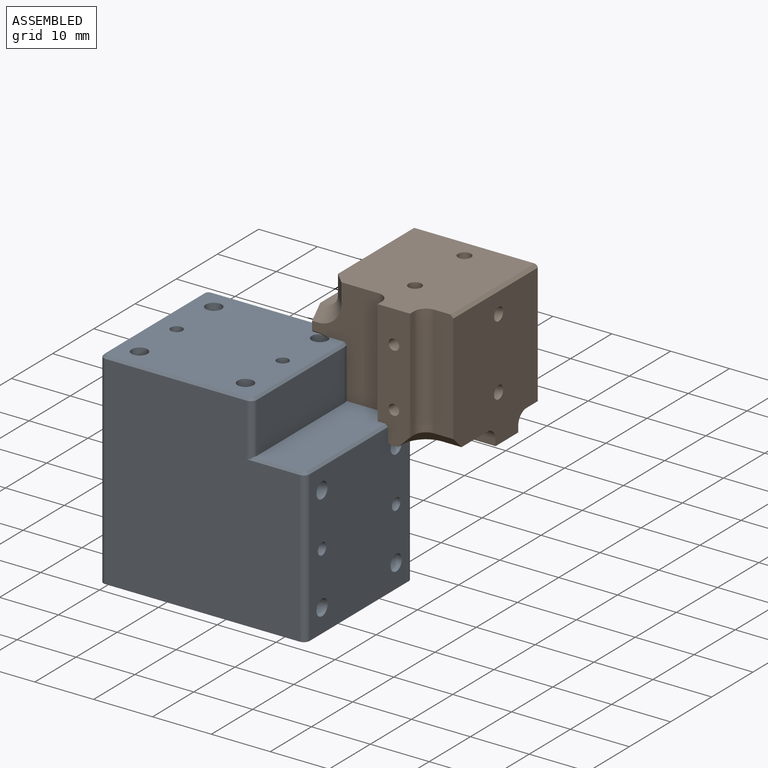
[diagram: assembled view]
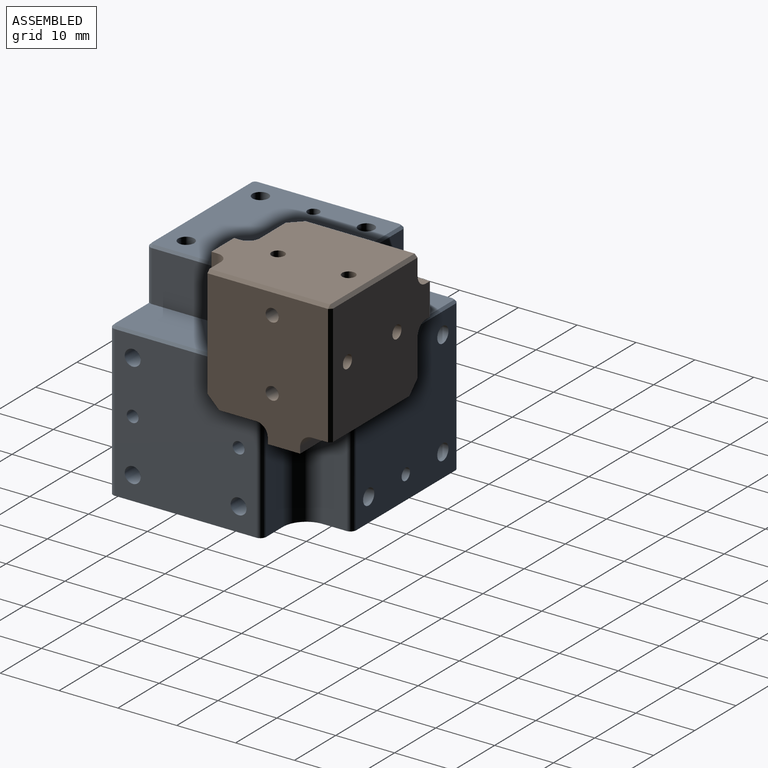
[diagram: assembled view, second angle]
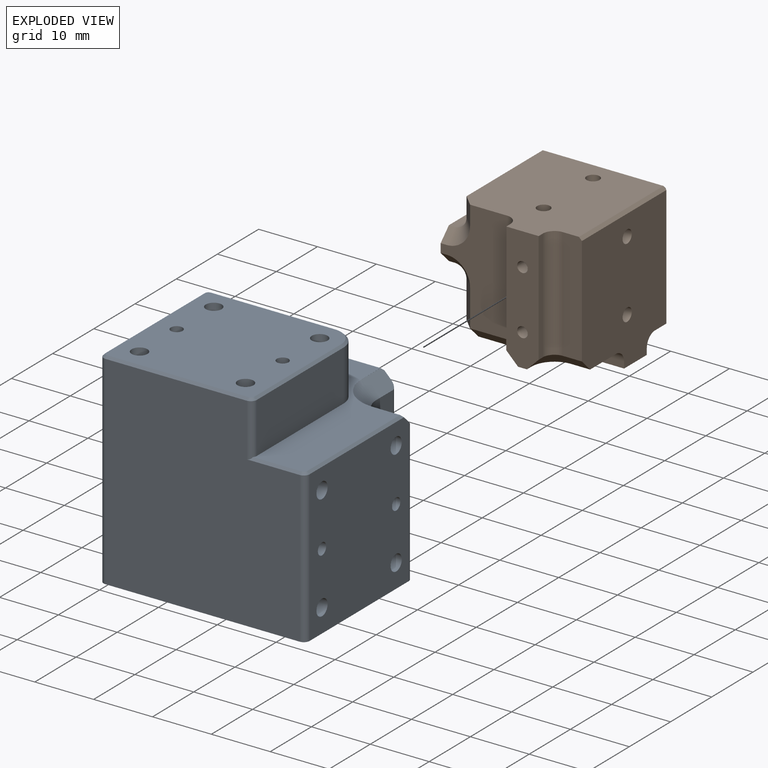
[diagram: exploded view]
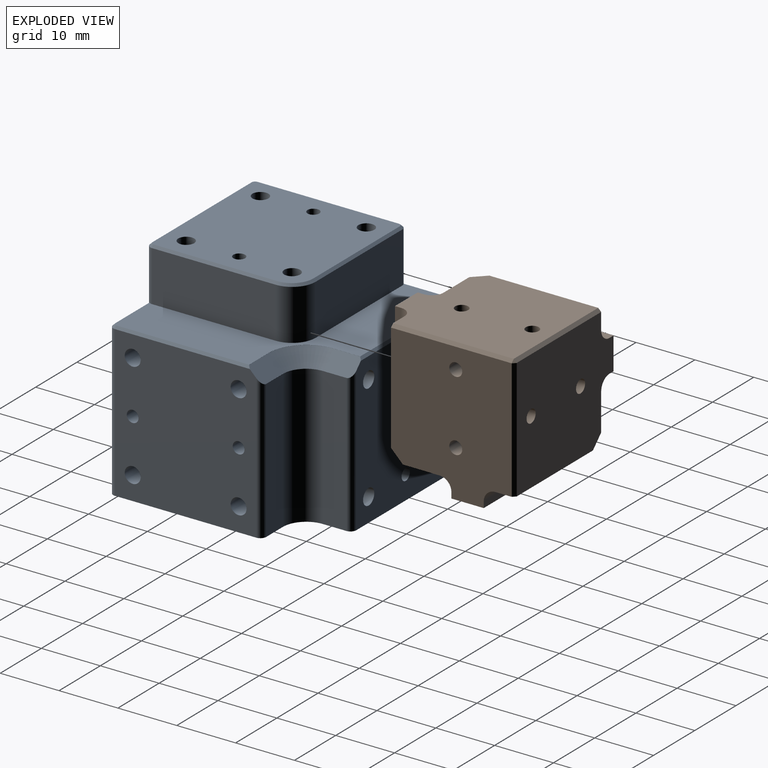
[diagram: exploded view, second angle]
FCSTD DOCUMENT  (FreeCAD 1.1R41365 (Git))
Label: Assembly_MicroManipulator
License: All rights reserved
LicenseURL: https://en.wikipedia.org/wiki/All_rights_reserved
objects: App::Link×35, Assembly::AssemblyLink×6, App::Point×4, App::FeaturePython×1, Assembly::JointGroup×1, Assembly::AssemblyObject×1
EXTERNAL_REF file=BaseBlock.FCStd obj=Body
EXTERNAL_REF file=Assembly_Actuator.FCStd obj=Assembly
EXTERNAL_REF file=Assembly_Actuator.FCStd obj=MotorHorn
EXTERNAL_REF file=Assembly_Actuator.FCStd obj=StepperMotorNema17
EXTERNAL_REF file=Assembly_Actuator.FCStd obj=Assembly_WireFlexureUnit
EXTERNAL_REF file=Assembly_WireFlexureUnit.FCStd obj=FlexureWire
EXTERNAL_REF file=Assembly_WireFlexureUnit.FCStd obj=FlexureWire001
EXTERNAL_REF file=Assembly_WireFlexureUnit.FCStd obj=WireMount
EXTERNAL_REF file=Assembly_WireFlexureUnit.FCStd obj=WireMount001
EXTERNAL_REF file=Assembly_WireFlexureUnit.FCStd obj=FlexureStiffener
EXTERNAL_REF file=Assembly_WireFlexureUnit.FCStd obj=FlexureStiffener001
EXTERNAL_REF file=Assembly_Actuator.FCStd obj=EncoderMAgnetArray
EXTERNAL_REF file=Assembly_Actuator.FCStd obj=MotorMount
EXTERNAL_REF file=Assembly_Actuator.FCStd obj=MT6835
EXTERNAL_REF file=EndEffector.FCStd obj=Body

FEATURE [App::Point] Origin001
  Role = Origin
FEATURE [App::Link] BaseBlock
  LinkedObject = -> <external BaseBlock.FCStd>#Body
FEATURE [App::FeaturePython] GroundedJoint  # Assembly grounded joint (typed FeaturePython)
  ObjectToGround = -> BaseBlock
FEATURE [Assembly::JointGroup] Joints
  Group = -> [GroundedJoint]
FEATURE [App::Point] Origin003
  Role = Origin
FEATURE [App::Link] MotorHorn
  LinkPlacement = pos=(7.39098e-06,7.86781e-06,55) rot=(0,0,1;0rad)
  LinkedObject = -> <external Assembly_Actuator.FCStd>#MotorHorn
  Placement = pos=(7.39098e-06,7.86781e-06,55) rot=(0,0,1;0rad)
FEATURE [App::Link] StepperMotorNema17
  LinkPlacement = pos=(0,2.53526e-07,-7.1e-15) rot=(0,0,1;3.14159rad)
  LinkedObject = -> <external Assembly_Actuator.FCStd>#StepperMotorNema17
  Placement = pos=(0,2.53526e-07,-7.1e-15) rot=(0,0,1;3.14159rad)
FEATURE [App::Point] Origin005
  Role = Origin
FEATURE [App::Link] MotorHorn001
  LinkPlacement = pos=(7.39098e-06,7.86781e-06,55) rot=(0,0,1;0rad)
  LinkedObject = -> <external Assembly_Actuator.FCStd>#MotorHorn
  Placement = pos=(7.39098e-06,7.86781e-06,55) rot=(0,0,1;0rad)
FEATURE [App::Link] StepperMotorNema001
  LinkPlacement = pos=(0,2.53526e-07,-7.1e-15) rot=(0,0,1;3.14159rad)
  LinkedObject = -> <external Assembly_Actuator.FCStd>#StepperMotorNema17
  Placement = pos=(0,2.53526e-07,-7.1e-15) rot=(0,0,1;3.14159rad)
FEATURE [App::Point] Origin007
  Role = Origin
FEATURE [App::Link] MotorHorn002
  LinkPlacement = pos=(7.39098e-06,7.86781e-06,55) rot=(0,0,1;0rad)
  LinkedObject = -> <external Assembly_Actuator.FCStd>#MotorHorn
  Placement = pos=(7.39098e-06,7.86781e-06,55) rot=(0,0,1;0rad)
FEATURE [App::Link] StepperMotorNema002
  LinkPlacement = pos=(0,2.53526e-07,-7.1e-15) rot=(0,0,1;3.14159rad)
  LinkedObject = -> <external Assembly_Actuator.FCStd>#StepperMotorNema17
  Placement = pos=(0,2.53526e-07,-7.1e-15) rot=(0,0,1;3.14159rad)
FEATURE [App::Link] FlexureWire  label="FlexureWire1"
  LinkPlacement = pos=(-8.5,9.53674e-07,0) rot=(0,0,1;0rad)
  LinkedObject = -> <external Assembly_WireFlexureUnit.FCStd>#FlexureWire
  Placement = pos=(-8.5,9.53674e-07,0) rot=(0,0,1;0rad)
FEATURE [App::Link] FlexureWire001  label="FlexureWire2"
  LinkPlacement = pos=(8.5,-9.53675e-07,0) rot=(0,0,1;0rad)
  LinkedObject = -> <external Assembly_WireFlexureUnit.FCStd>#FlexureWire001
  Placement = pos=(8.5,-9.53675e-07,0) rot=(0,0,1;0rad)
FEATURE [App::Link] WireMount  label="WireMount1"
  LinkPlacement = pos=(1.421e-13,40,0) rot=(0,0,1;0rad)
  LinkedObject = -> <external Assembly_WireFlexureUnit.FCStd>#WireMount
  Placement = pos=(1.421e-13,40,0) rot=(0,0,1;0rad)
FEATURE [App::Link] WireMount001  label="WireMount2"
  LinkPlacement = pos=(3.73908e-06,-40,0) rot=(1.00615,0,0;3.14159rad)
  LinkedObject = -> <external Assembly_WireFlexureUnit.FCStd>#WireMount001
  Placement = pos=(3.73908e-06,-40,0) rot=(1.00615,0,0;3.14159rad)
FEATURE [App::Link] FlexureWire002
  LinkPlacement = pos=(-8.5,9.53674e-07,0) rot=(0,0,1;0rad)
  LinkedObject = -> <external Assembly_WireFlexureUnit.FCStd>#FlexureWire
  Placement = pos=(-8.5,9.53674e-07,0) rot=(0,0,1;0rad)
FEATURE [App::Link] FlexureWire003
  LinkPlacement = pos=(8.5,-9.53675e-07,0) rot=(0,0,1;0rad)
  LinkedObject = -> <external Assembly_WireFlexureUnit.FCStd>#FlexureWire001
  Placement = pos=(8.5,-9.53675e-07,0) rot=(0,0,1;0rad)
FEATURE [App::Link] WireMount002
  LinkPlacement = pos=(1.421e-13,40,0) rot=(0,0,1;0rad)
  LinkedObject = -> <external Assembly_WireFlexureUnit.FCStd>#WireMount
  Placement = pos=(1.421e-13,40,0) rot=(0,0,1;0rad)
FEATURE [App::Link] WireMount003
  LinkPlacement = pos=(3.73908e-06,-40,0) rot=(1.00615,0,0;3.14159rad)
  LinkedObject = -> <external Assembly_WireFlexureUnit.FCStd>#WireMount001
  Placement = pos=(3.73908e-06,-40,0) rot=(1.00615,0,0;3.14159rad)
FEATURE [App::Link] FlexureWire004
  LinkPlacement = pos=(-8.5,9.53674e-07,0) rot=(0,0,1;0rad)
  LinkedObject = -> <external Assembly_WireFlexureUnit.FCStd>#FlexureWire
  Placement = pos=(-8.5,9.53674e-07,0) rot=(0,0,1;0rad)
FEATURE [App::Link] FlexureWire005
  LinkPlacement = pos=(8.5,-9.53675e-07,0) rot=(0,0,1;0rad)
  LinkedObject = -> <external Assembly_WireFlexureUnit.FCStd>#FlexureWire001
  Placement = pos=(8.5,-9.53675e-07,0) rot=(0,0,1;0rad)
FEATURE [App::Link] WireMount004
  LinkPlacement = pos=(1.421e-13,40,0) rot=(0,0,1;0rad)
  LinkedObject = -> <external Assembly_WireFlexureUnit.FCStd>#WireMount
  Placement = pos=(1.421e-13,40,0) rot=(0,0,1;0rad)
FEATURE [App::Link] WireMount005
  LinkPlacement = pos=(3.73908e-06,-40,0) rot=(1.00615,0,0;3.14159rad)
  LinkedObject = -> <external Assembly_WireFlexureUnit.FCStd>#WireMount001
  Placement = pos=(3.73908e-06,-40,0) rot=(1.00615,0,0;3.14159rad)
FEATURE [App::Link] FlexureStiffener  label="FlexureStiffener1"
  LinkPlacement = pos=(8.5,0,0) rot=(0,0,1;0rad)
  LinkedObject = -> <external Assembly_WireFlexureUnit.FCStd>#FlexureStiffener
  Placement = pos=(8.5,0,0) rot=(0,0,1;0rad)
FEATURE [App::Link] FlexureStiffener001  label="FlexureStiffener2"
  LinkPlacement = pos=(-8.5,9.53675e-07,0) rot=(0,0,1;0rad)
  LinkedObject = -> <external Assembly_WireFlexureUnit.FCStd>#FlexureStiffener001
  Placement = pos=(-8.5,9.53675e-07,0) rot=(0,0,1;0rad)
FEATURE [Assembly::AssemblyLink] Assembly_WireFlexureUnit  label="WireFlexureUnit"
  Group = -> [FlexureWire,FlexureWire001,WireMount,WireMount001,FlexureStiffener,FlexureStiffener001]
  LinkedObject = -> <external Assembly_Actuator.FCStd>#Assembly_WireFlexureUnit
  Placement = pos=(15,-36.5,65) rot=(0,1,0;1.5708rad)
  Rigid = true
FEATURE [App::Link] FlexureStiffener002
  LinkPlacement = pos=(8.5,0,0) rot=(0,0,1;0rad)
  LinkedObject = -> <external Assembly_WireFlexureUnit.FCStd>#FlexureStiffener
  Placement = pos=(8.5,0,0) rot=(0,0,1;0rad)
FEATURE [App::Link] FlexureStiffener003
  LinkPlacement = pos=(-8.5,9.53675e-07,0) rot=(0,0,1;0rad)
  LinkedObject = -> <external Assembly_WireFlexureUnit.FCStd>#FlexureStiffener001
  Placement = pos=(-8.5,9.53675e-07,0) rot=(0,0,1;0rad)
FEATURE [Assembly::AssemblyLink] Assembly_WireFlexureUnit001  label="WireFlexureUnit001"
  Group = -> [FlexureWire002,FlexureWire003,WireMount002,WireMount003,FlexureStiffener002,FlexureStiffener003]
  LinkedObject = -> <external Assembly_Actuator.FCStd>#Assembly_WireFlexureUnit
  Placement = pos=(15,-36.5,65) rot=(0,1,0;1.5708rad)
  Rigid = true
FEATURE [App::Link] FlexureStiffener004
  LinkPlacement = pos=(8.5,0,0) rot=(0,0,1;0rad)
  LinkedObject = -> <external Assembly_WireFlexureUnit.FCStd>#FlexureStiffener
  Placement = pos=(8.5,0,0) rot=(0,0,1;0rad)
FEATURE [App::Link] FlexureStiffener005
  LinkPlacement = pos=(-8.5,9.53675e-07,0) rot=(0,0,1;0rad)
  LinkedObject = -> <external Assembly_WireFlexureUnit.FCStd>#FlexureStiffener001
  Placement = pos=(-8.5,9.53675e-07,0) rot=(0,0,1;0rad)
FEATURE [Assembly::AssemblyLink] Assembly_WireFlexureUnit002  label="WireFlexureUnit002"
  Group = -> [FlexureWire004,FlexureWire005,WireMount004,WireMount005,FlexureStiffener004,FlexureStiffener005]
  LinkedObject = -> <external Assembly_Actuator.FCStd>#Assembly_WireFlexureUnit
  Placement = pos=(15,-36.5,65) rot=(0,1,0;1.5708rad)
  Rigid = true
FEATURE [App::Link] EncoderMAgnetArray
  LinkPlacement = pos=(0,-6.70552e-06,56) rot=(0,0,1;0rad)
  LinkedObject = -> <external Assembly_Actuator.FCStd>#EncoderMAgnetArray
  Placement = pos=(0,-6.70552e-06,56) rot=(0,0,1;0rad)
FEATURE [App::Link] EncoderMAgnetArray001
  LinkPlacement = pos=(0,-6.70552e-06,56) rot=(0,0,1;0rad)
  LinkedObject = -> <external Assembly_Actuator.FCStd>#EncoderMAgnetArray
  Placement = pos=(0,-6.70552e-06,56) rot=(0,0,1;0rad)
FEATURE [App::Link] EncoderMAgnetArray002
  LinkPlacement = pos=(0,-6.70552e-06,56) rot=(0,0,1;0rad)
  LinkedObject = -> <external Assembly_Actuator.FCStd>#EncoderMAgnetArray
  Placement = pos=(0,-6.70552e-06,56) rot=(0,0,1;0rad)
FEATURE [App::Link] MotorMount
  LinkPlacement = pos=(-1.1506e-12,-5.60284e-06,47.5) rot=(0,0,1;0rad)
  LinkedObject = -> <external Assembly_Actuator.FCStd>#MotorMount
  Placement = pos=(-1.1506e-12,-5.60284e-06,47.5) rot=(0,0,1;0rad)
FEATURE [App::Link] MotorMount001
  LinkPlacement = pos=(-1.1506e-12,-5.60284e-06,47.5) rot=(0,0,1;0rad)
  LinkedObject = -> <external Assembly_Actuator.FCStd>#MotorMount
  Placement = pos=(-1.1506e-12,-5.60284e-06,47.5) rot=(0,0,1;0rad)
FEATURE [App::Link] MotorMount002
  LinkPlacement = pos=(-1.1506e-12,-5.60284e-06,47.5) rot=(0,0,1;0rad)
  LinkedObject = -> <external Assembly_Actuator.FCStd>#MotorMount
  Placement = pos=(-1.1506e-12,-5.60284e-06,47.5) rot=(0,0,1;0rad)
FEATURE [App::Link] MT6835
  LinkPlacement = pos=(-32,5.40315e-06,53) rot=(0.57735,-0.57735,0.57735;4.18879rad)
  LinkedObject = -> <external Assembly_Actuator.FCStd>#MT6835
  Placement = pos=(-32,5.40315e-06,53) rot=(0.57735,-0.57735,0.57735;4.18879rad)
FEATURE [Assembly::AssemblyLink] Assembly_Actuator  label="Assembly_Actuator1"
  Group = -> [MotorHorn,StepperMotorNema17,Assembly_WireFlexureUnit,EncoderMAgnetArray,MotorMount,MT6835]
  LinkedObject = -> <external Assembly_Actuator.FCStd>#Assembly
  Origin = -> Origin002
  Placement = pos=(-41.5,2.5,-31) rot=(0,0,1;1.5708rad)
  Rigid = true
FEATURE [App::Link] MT6836
  LinkPlacement = pos=(-32,5.40315e-06,53) rot=(0.57735,-0.57735,0.57735;4.18879rad)
  LinkedObject = -> <external Assembly_Actuator.FCStd>#MT6835
  Placement = pos=(-32,5.40315e-06,53) rot=(0.57735,-0.57735,0.57735;4.18879rad)
FEATURE [Assembly::AssemblyLink] Assembly_Actuator001  label="Assembly_Actuator2"
  Group = -> [MotorHorn001,StepperMotorNema001,Assembly_WireFlexureUnit001,EncoderMAgnetArray001,MotorMount001,MT6836]
  LinkedObject = -> <external Assembly_Actuator.FCStd>#Assembly
  Origin = -> Origin004
  Placement = pos=(-31,-41.5,2.49999) rot=(0.707107,0,0.707107;3.14159rad)
  Rigid = true
FEATURE [App::Link] MT6837
  LinkPlacement = pos=(-32,5.40315e-06,53) rot=(0.57735,-0.57735,0.57735;4.18879rad)
  LinkedObject = -> <external Assembly_Actuator.FCStd>#MT6835
  Placement = pos=(-32,5.40315e-06,53) rot=(0.57735,-0.57735,0.57735;4.18879rad)
FEATURE [Assembly::AssemblyLink] Assembly_Actuator002  label="Assembly_Actuator3"
  Group = -> [MotorHorn002,StepperMotorNema002,Assembly_WireFlexureUnit002,EncoderMAgnetArray002,MotorMount002,MT6837]
  LinkedObject = -> <external Assembly_Actuator.FCStd>#Assembly
  Origin = -> Origin006
  Placement = pos=(2.5,-31,-41.5) rot=(-1,0,0;1.5708rad)
  Rigid = true
FEATURE [App::Link] Endeffector
  LinkPlacement = pos=(32,32,32) rot=(0,0,1;0rad)
  LinkedObject = -> <external EndEffector.FCStd>#Body
  Placement = pos=(32,32,32) rot=(0,0,1;0rad)
FEATURE [Assembly::AssemblyObject] Assembly  label="Assembly_MicroManipulator"
  Group = -> [Joints,BaseBlock,GroundedJoint,Assembly_Actuator,Assembly_Actuator001,Assembly_Actuator002,Endeffector]
  Origin = -> Origin
  Type = Assembly

RESOLVED EXTERNAL PARTS (link-assembly join: the EXTERNAL_REF files above that resolve inside this repo's crawl, each included once):
---- part Assembly_Actuator.FCStd = doc fcstd_84c00663fac4 ----
FCSTD DOCUMENT  (FreeCAD 1.1R41365 (Git))
Label: Assembly_Actuator
License: All rights reserved
LicenseURL: https://en.wikipedia.org/wiki/All_rights_reserved
objects: App::Link×22, App::Point×2, App::FeaturePython×1, Assembly::JointGroup×1, Assembly::AssemblyObject×1, Assembly::AssemblyLink×1
EXTERNAL_REF file=MotorHorn.FCStd obj=Body
EXTERNAL_REF file=StepperMotorNema17.FCStd obj=Part
EXTERNAL_REF file=Assembly_WireFlexureUnit.FCStd obj=Assembly
EXTERNAL_REF file=Assembly_WireFlexureUnit.FCStd obj=FlexureWire
EXTERNAL_REF file=Assembly_WireFlexureUnit.FCStd obj=FlexureWire001
EXTERNAL_REF file=Assembly_WireFlexureUnit.FCStd obj=WireMount
EXTERNAL_REF file=Assembly_WireFlexureUnit.FCStd obj=WireMount001
EXTERNAL_REF file=EncoderMagnetArray.FCStd obj=Body
EXTERNAL_REF file=MT6835.FCStd obj=Body
EXTERNAL_REF file=MotorMount2_KM.FCStd obj=Body
EXTERNAL_REF file=Assembly_WireFlexureUnit.FCStd obj=Ball
EXTERNAL_REF file=Assembly_WireFlexureUnit.FCStd obj=Ball001
EXTERNAL_REF file=Assembly_WireFlexureUnit.FCStd obj=Ball002
EXTERNAL_REF file=Assembly_WireFlexureUnit.FCStd obj=Ball003
EXTERNAL_REF file=Assembly_WireFlexureUnit.FCStd obj=RubberBandCollet
EXTERNAL_REF file=Assembly_WireFlexureUnit.FCStd obj=RubberBandCollet001
EXTERNAL_REF file=Assembly_WireFlexureUnit.FCStd obj=RubberBandCollet002
EXTERNAL_REF file=Assembly_WireFlexureUnit.FCStd obj=RubberBandCollet003
EXTERNAL_REF file=Assembly_WireFlexureUnit.FCStd obj=RubberBand
EXTERNAL_REF file=Assembly_WireFlexureUnit.FCStd obj=RubberBand001
EXTERNAL_REF file=Assembly_WireFlexureUnit.FCStd obj=RubberBand002
EXTERNAL_REF file=Assembly_WireFlexureUnit.FCStd obj=RubberBand003

FEATURE [App::Point] Origin001
  Role = Origin
FEATURE [App::Link] MotorHorn
  LinkPlacement = pos=(7.39098e-06,7.86781e-06,55) rot=(0,0,1;0rad)
  LinkedObject = -> <external MotorHorn.FCStd>#Body
  Placement = pos=(7.39098e-06,7.86781e-06,55) rot=(0,0,1;0rad)
FEATURE [App::Link] StepperMotorNema17
  LinkPlacement = pos=(0,2.53526e-07,-7.1e-15) rot=(0,0,1;3.14159rad)
  LinkedObject = -> <external StepperMotorNema17.FCStd>#Part
  Placement = pos=(0,2.53526e-07,-7.1e-15) rot=(0,0,1;3.14159rad)
FEATURE [App::FeaturePython] GroundedJoint  # Assembly grounded joint (typed FeaturePython)
  ObjectToGround = -> StepperMotorNema17
FEATURE [Assembly::JointGroup] Joints
  Group = -> [GroundedJoint]
FEATURE [App::Point] Origin003
  Role = Origin
FEATURE [App::Link] FlexureWire  label="FlexureWire1"
  LinkPlacement = pos=(-8.5,9.53674e-07,0) rot=(0,0,1;0rad)
  LinkedObject = -> <external Assembly_WireFlexureUnit.FCStd>#FlexureWire
  Placement = pos=(-8.5,9.53674e-07,0) rot=(0,0,1;0rad)
FEATURE [App::Link] FlexureWire001  label="FlexureWire2"
  LinkPlacement = pos=(8.5,-9.53675e-07,0) rot=(0,0,1;0rad)
  LinkedObject = -> <external Assembly_WireFlexureUnit.FCStd>#FlexureWire001
  Placement = pos=(8.5,-9.53675e-07,0) rot=(0,0,1;0rad)
FEATURE [App::Link] WireMount  label="WireMount1"
  LinkPlacement = pos=(1.421e-13,40,0) rot=(0,0,1;0rad)
  LinkedObject = -> <external Assembly_WireFlexureUnit.FCStd>#WireMount
  Placement = pos=(1.421e-13,40,0) rot=(0,0,1;0rad)
FEATURE [App::Link] WireMount001  label="WireMount2"
  LinkPlacement = pos=(3.73908e-06,-40,0) rot=(1,0,0;3.14159rad)
  LinkedObject = -> <external Assembly_WireFlexureUnit.FCStd>#WireMount001
  Placement = pos=(3.73908e-06,-40,0) rot=(1,0,0;3.14159rad)
FEATURE [App::Link] EncoderMAgnetArray  label="EncoderMagnetArray"
  LinkPlacement = pos=(0,-6.70552e-06,56) rot=(0,0,1;0rad)
  LinkedObject = -> <external EncoderMagnetArray.FCStd>#Body
  Placement = pos=(0,-6.70552e-06,56) rot=(0,0,1;0rad)
FEATURE [App::Link] MT6835
  LinkPlacement = pos=(-32,6.52075e-06,53.5) rot=(0,1,0;1.5708rad)
  LinkedObject = -> <external MT6835.FCStd>#Body
  Placement = pos=(-32,6.52075e-06,53.5) rot=(0,1,0;1.5708rad)
FEATURE [App::Link] MotorMount_KM
  LinkPlacement = pos=(2.98461e-06,-1.07433e-05,54.5) rot=(0.707107,0.707107,0;3.14159rad)
  LinkedObject = -> <external MotorMount2_KM.FCStd>#Body
  Placement = pos=(2.98461e-06,-1.07433e-05,54.5) rot=(0.707107,0.707107,0;3.14159rad)
FEATURE [App::Link] Ball  label="Ball1"
  LinkPlacement = pos=(-8.5,36.5,0) rot=(0,0,1;0rad)
  LinkedObject = -> <external Assembly_WireFlexureUnit.FCStd>#Ball
  Placement = pos=(-8.5,36.5,0) rot=(0,0,1;0rad)
FEATURE [App::Link] Ball001  label="Ball2"
  LinkPlacement = pos=(8.5,36.5,0) rot=(0,0,1;0rad)
  LinkedObject = -> <external Assembly_WireFlexureUnit.FCStd>#Ball001
  Placement = pos=(8.5,36.5,0) rot=(0,0,1;0rad)
FEATURE [App::Link] Ball002  label="Ball3"
  LinkPlacement = pos=(-8.5,-36.5,0) rot=(0,0,1;0rad)
  LinkedObject = -> <external Assembly_WireFlexureUnit.FCStd>#Ball002
  Placement = pos=(-8.5,-36.5,0) rot=(0,0,1;0rad)
FEATURE [App::Link] Ball003  label="Ball4"
  LinkPlacement = pos=(8.5,-36.5,0) rot=(0,0,1;0rad)
  LinkedObject = -> <external Assembly_WireFlexureUnit.FCStd>#Ball003
  Placement = pos=(8.5,-36.5,0) rot=(0,0,1;0rad)
FEATURE [App::Link] Link  label="WireFlexureUnit001"
  LinkPlacement = pos=(15,-36.5,65) rot=(0,1,0;1.5708rad)
  LinkedObject = -> Assembly_WireFlexureUnit
  Placement = pos=(15,-36.5,65) rot=(0,1,0;1.5708rad)
FEATURE [Assembly::AssemblyObject] Assembly  label="Actuator"
  Group = -> [Joints,MotorHorn,StepperMotorNema17,GroundedJoint,Link,EncoderMAgnetArray,MT6835,MotorMount_KM]
  Origin = -> Origin
  Type = Assembly
FEATURE [App::Link] RubberBandCollet
  LinkPlacement = pos=(-8.5,-24,-1.04e-14) rot=(1,0,0;1.5708rad)
  LinkedObject = -> <external Assembly_WireFlexureUnit.FCStd>#RubberBandCollet
  Placement = pos=(-8.5,-24,-1.04e-14) rot=(1,0,0;1.5708rad)
FEATURE [App::Link] RubberBandCollet001
  LinkPlacement = pos=(8.5,-24,-1.04e-14) rot=(1,0,0;1.5708rad)
  LinkedObject = -> <external Assembly_WireFlexureUnit.FCStd>#RubberBandCollet001
  Placement = pos=(8.5,-24,-1.04e-14) rot=(1,0,0;1.5708rad)
FEATURE [App::Link] RubberBandCollet002
  LinkPlacement = pos=(-8.5,24,-5.5e-15) rot=(1,0,0;4.71239rad)
  LinkedObject = -> <external Assembly_WireFlexureUnit.FCStd>#RubberBandCollet002
  Placement = pos=(-8.5,24,-5.5e-15) rot=(1,0,0;4.71239rad)
FEATURE [App::Link] RubberBandCollet003
  LinkPlacement = pos=(8.5,24,-5.5e-15) rot=(1,0,0;4.71239rad)
  LinkedObject = -> <external Assembly_WireFlexureUnit.FCStd>#RubberBandCollet003
  Placement = pos=(8.5,24,-5.5e-15) rot=(1,0,0;4.71239rad)
FEATURE [App::Link] RubberBand
  LinkPlacement = pos=(-8.5,-44,-2.22928e-06) rot=(0,1,0;1.5708rad)
  LinkedObject = -> <external Assembly_WireFlexureUnit.FCStd>#RubberBand
  Placement = pos=(-8.5,-44,-2.22928e-06) rot=(0,1,0;1.5708rad)
FEATURE [App::Link] RubberBand001
  LinkPlacement = pos=(8.5,-44,2.22928e-06) rot=(0,1,0;1.5708rad)
  LinkedObject = -> <external Assembly_WireFlexureUnit.FCStd>#RubberBand001
  Placement = pos=(8.5,-44,2.22928e-06) rot=(0,1,0;1.5708rad)
FEATURE [App::Link] RubberBand002
  LinkPlacement = pos=(8.5,44,7e-16) rot=(0.707107,0,-0.707107;3.14159rad)
  LinkedObject = -> <external Assembly_WireFlexureUnit.FCStd>#RubberBand002
  Placement = pos=(8.5,44,7e-16) rot=(0.707107,0,-0.707107;3.14159rad)
FEATURE [App::Link] RubberBand003
  LinkPlacement = pos=(-8.5,44,-1.4e-15) rot=(-0.707107,0,0.707107;3.14159rad)
  LinkedObject = -> <external Assembly_WireFlexureUnit.FCStd>#RubberBand003
  Placement = pos=(-8.5,44,-1.4e-15) rot=(-0.707107,0,0.707107;3.14159rad)
FEATURE [Assembly::AssemblyLink] Assembly_WireFlexureUnit  label="WireFlexureUnit"
  Group = -> [FlexureWire,FlexureWire001,WireMount,WireMount001,Ball,Ball001,Ball002,Ball003,RubberBandCollet,RubberBandCollet001,RubberBandCollet002,RubberBandCollet003,RubberBand,RubberBand001,RubberBand002,RubberBand003]
  LinkedObject = -> <external Assembly_WireFlexureUnit.FCStd>#Assembly
  Origin = -> Origin002
  Placement = pos=(15,-36.5,65) rot=(0,1,0;1.5708rad)
  Rigid = true
---- part Assembly_WireFlexureUnit.FCStd = doc fcstd_ed4abc132b40 ----
FCSTD DOCUMENT  (FreeCAD 1.1R41365 (Git))
Label: Assembly_WireFlexureUnit
License: All rights reserved
LicenseURL: https://en.wikipedia.org/wiki/All_rights_reserved
objects: App::FeaturePython×24, App::Link×16, App::Point×1, Assembly::JointGroup×1, Assembly::AssemblyObject×1
EXTERNAL_REF file=WireFlexure.FCStd obj=Body
EXTERNAL_REF file=BallJointMount.FCStd obj=Body
EXTERNAL_REF file=JointBall.FCStd obj=Body
EXTERNAL_REF file=RubberBandCollet.FCStd obj=Body
EXTERNAL_REF file=RubberBand.FCStd obj=Body

FEATURE [App::Point] Origin001
  Role = Origin
FEATURE [App::Link] FlexureWire  label="FlexureWire1"
  LinkPlacement = pos=(-8.5,9.53674e-07,0) rot=(0,0,1;0rad)
  LinkedObject = -> <external WireFlexure.FCStd>#Body
  Placement = pos=(-8.5,9.53674e-07,0) rot=(0,0,1;0rad)
FEATURE [App::FeaturePython] GroundedJoint  # Assembly grounded joint (typed FeaturePython)
  ObjectToGround = -> FlexureWire
FEATURE [App::Link] FlexureWire001  label="FlexureWire2"
  LinkPlacement = pos=(8.5,-9.53675e-07,0) rot=(0,0,1;0rad)
  LinkedObject = -> <external WireFlexure.FCStd>#Body
  Placement = pos=(8.5,-9.53675e-07,0) rot=(0,0,1;0rad)
FEATURE [App::Link] WireMount  label="WireMount1"
  LinkPlacement = pos=(1.421e-13,40,0) rot=(0,0,1;0rad)
  LinkedObject = -> <external BallJointMount.FCStd>#Body
  Placement = pos=(1.421e-13,40,0) rot=(0,0,1;0rad)
FEATURE [App::Link] WireMount001  label="WireMount2"
  LinkPlacement = pos=(3.73908e-06,-40,0) rot=(1,0,0;3.14159rad)
  LinkedObject = -> <external BallJointMount.FCStd>#Body
  Placement = pos=(3.73908e-06,-40,0) rot=(1,0,0;3.14159rad)
FEATURE [App::Link] Ball  label="Ball1"
  LinkPlacement = pos=(-8.5,36.5,0) rot=(0,0,1;0rad)
  LinkedObject = -> <external JointBall.FCStd>#Body
  Placement = pos=(-8.5,36.5,0) rot=(0,0,1;0rad)
FEATURE [App::Link] Ball001  label="Ball2"
  LinkPlacement = pos=(8.5,36.5,0) rot=(0,0,1;0rad)
  LinkedObject = -> <external JointBall.FCStd>#Body
  Placement = pos=(8.5,36.5,0) rot=(0,0,1;0rad)
FEATURE [App::Link] Ball002  label="Ball3"
  LinkPlacement = pos=(-8.5,-36.5,0) rot=(0,0,1;0rad)
  LinkedObject = -> <external JointBall.FCStd>#Body
  Placement = pos=(-8.5,-36.5,0) rot=(0,0,1;0rad)
FEATURE [App::Link] Ball003  label="Ball4"
  LinkPlacement = pos=(8.5,-36.5,0) rot=(0,0,1;0rad)
  LinkedObject = -> <external JointBall.FCStd>#Body
  Placement = pos=(8.5,-36.5,0) rot=(0,0,1;0rad)
FEATURE [App::FeaturePython] GroundedJoint001  # Assembly grounded joint (typed FeaturePython)
  ObjectToGround = -> FlexureWire001
FEATURE [App::FeaturePython] GroundedJoint002  # Assembly grounded joint (typed FeaturePython)
  ObjectToGround = -> WireMount
FEATURE [App::FeaturePython] GroundedJoint003  # Assembly grounded joint (typed FeaturePython)
  ObjectToGround = -> WireMount001
FEATURE [App::FeaturePython] GroundedJoint004  # Assembly grounded joint (typed FeaturePython)
  ObjectToGround = -> Ball
FEATURE [App::FeaturePython] GroundedJoint005  # Assembly grounded joint (typed FeaturePython)
  ObjectToGround = -> Ball001
FEATURE [App::FeaturePython] GroundedJoint006  # Assembly grounded joint (typed FeaturePython)
  ObjectToGround = -> Ball002
FEATURE [App::FeaturePython] GroundedJoint007  # Assembly grounded joint (typed FeaturePython)
  ObjectToGround = -> Ball003
FEATURE [App::Link] RubberBandCollet
  LinkPlacement = pos=(-8.5,-24,-1.04e-14) rot=(1,0,0;1.5708rad)
  LinkedObject = -> <external RubberBandCollet.FCStd>#Body
  Placement = pos=(-8.5,-24,-1.04e-14) rot=(1,0,0;1.5708rad)
FEATURE [App::Link] RubberBandCollet001
  LinkPlacement = pos=(8.5,-24,-1.04e-14) rot=(1,0,0;1.5708rad)
  LinkedObject = -> <external RubberBandCollet.FCStd>#Body
  Placement = pos=(8.5,-24,-1.04e-14) rot=(1,0,0;1.5708rad)
FEATURE [App::Link] RubberBandCollet002
  LinkPlacement = pos=(-8.5,24,-5.5e-15) rot=(1,0,0;4.71239rad)
  LinkedObject = -> <external RubberBandCollet.FCStd>#Body
  Placement = pos=(-8.5,24,-5.5e-15) rot=(1,0,0;4.71239rad)
FEATURE [App::Link] RubberBandCollet003
  LinkPlacement = pos=(8.5,24,-5.5e-15) rot=(1,0,0;4.71239rad)
  LinkedObject = -> <external RubberBandCollet.FCStd>#Body
  Placement = pos=(8.5,24,-5.5e-15) rot=(1,0,0;4.71239rad)
FEATURE [App::Link] RubberBand
  LinkPlacement = pos=(-8.5,-44,-2.22928e-06) rot=(0,1,0;1.5708rad)
  LinkedObject = -> <external RubberBand.FCStd>#Body
  Placement = pos=(-8.5,-44,-2.22928e-06) rot=(0,1,0;1.5708rad)
FEATURE [App::Link] RubberBand001
  LinkPlacement = pos=(8.5,-44,2.22928e-06) rot=(0,1,0;1.5708rad)
  LinkedObject = -> <external RubberBand.FCStd>#Body
  Placement = pos=(8.5,-44,2.22928e-06) rot=(0,1,0;1.5708rad)
FEATURE [App::Link] RubberBand002
  LinkPlacement = pos=(8.5,44,7e-16) rot=(0.707107,0,-0.707107;3.14159rad)
  LinkedObject = -> <external RubberBand.FCStd>#Body
  Placement = pos=(8.5,44,7e-16) rot=(0.707107,0,-0.707107;3.14159rad)
FEATURE [App::Link] RubberBand003
  LinkPlacement = pos=(-8.5,44,-1.4e-15) rot=(-0.707107,0,0.707107;3.14159rad)
  LinkedObject = -> <external RubberBand.FCStd>#Body
  Placement = pos=(-8.5,44,-1.4e-15) rot=(-0.707107,0,0.707107;3.14159rad)
FEATURE [App::FeaturePython] Joint  label="Fixed002"  # Assembly joint (typed FeaturePython)
  Activated = true
  Angle = 0
  AngleMax = 0
  AngleMin = 0
  Detach1 = false
  Detach2 = false
  Distance = 0
  Distance2 = 0
  EnableAngleMax = false
  EnableAngleMin = false
  EnableLengthMax = false
  EnableLengthMin = false
  JointType = 0 (Fixed)
  LengthMax = 0
  LengthMin = 0
  Offset2 = pos=(0,0,-8) rot=(0,0,1;0rad)
  Placement1 = pos=(0,0,3) rot=(0,0,1;0rad)
  Placement2 = pos=(0,-27,-9.8e-15) rot=(1,0,0;1.5708rad)
  Reference1 = -> Assembly [RubberBandCollet.Face20,RubberBandCollet.Edge3]
  Reference2 = -> Assembly [FlexureWire.Face1,FlexureWire.Edge3]
  Suppressed = false
FEATURE [App::FeaturePython] Joint001  label="Fixed"  # Assembly joint (typed FeaturePython)
  Activated = true
  Angle = 0
  AngleMax = 0
  AngleMin = 0
  Detach1 = false
  Detach2 = false
  Distance = 0
  Distance2 = 0
  EnableAngleMax = false
  EnableAngleMin = false
  EnableLengthMax = false
  EnableLengthMin = false
  JointType = 0 (Fixed)
  LengthMax = 0
  LengthMin = 0
  Offset2 = pos=(0,0,-8) rot=(0,0,1;0rad)
  Placement1 = pos=(0,0,3) rot=(0,0,1;0rad)
  Placement2 = pos=(0,-27,-9.8e-15) rot=(1,0,0;1.5708rad)
  Reference1 = -> Assembly [RubberBandCollet001.Edge27,RubberBandCollet001.Edge27]
  Reference2 = -> Assembly [FlexureWire001.Face1,FlexureWire001.Edge3]
  Suppressed = false
FEATURE [App::FeaturePython] Joint002  label="Fixed003"  # Assembly joint (typed FeaturePython)
  Activated = true
  Angle = 0
  AngleMax = 0
  AngleMin = 0
  Detach1 = false
  Detach2 = false
  Distance = 0
  Distance2 = 0
  EnableAngleMax = false
  EnableAngleMin = false
  EnableLengthMax = false
  EnableLengthMin = false
  JointType = 0 (Fixed)
  LengthMax = 0
  LengthMin = 0
  Offset2 = pos=(0,0,8) rot=(0,0,1;0rad)
  Placement1 = pos=(0,0,3) rot=(0,0,1;0rad)
  Placement2 = pos=(0,27,-6.2e-15) rot=(1,0,0;1.5708rad)
  Reference1 = -> Assembly [RubberBandCollet002.Edge27,RubberBandCollet002.Edge27]
  Reference2 = -> Assembly [FlexureWire.Face1,FlexureWire.Edge2]
  Suppressed = false
FEATURE [App::FeaturePython] Joint003  label="Fixed005"  # Assembly joint (typed FeaturePython)
  Activated = true
  Angle = 0
  AngleMax = 0
  AngleMin = 0
  Detach1 = false
  Detach2 = false
  Distance = 0
  Distance2 = 0
  EnableAngleMax = false
  EnableAngleMin = false
  EnableLengthMax = false
  EnableLengthMin = false
  JointType = 0 (Fixed)
  LengthMax = 0
  LengthMin = 0
  Offset2 = pos=(0,0,8) rot=(0,0,1;0rad)
  Placement1 = pos=(0,0,3) rot=(0,0,1;0rad)
  Placement2 = pos=(0,27,-6.2e-15) rot=(1,0,0;1.5708rad)
  Reference1 = -> Assembly [RubberBandCollet003.Edge27,RubberBandCollet003.Edge27]
  Reference2 = -> Assembly [FlexureWire001.Face1,FlexureWire001.Edge2]
  Suppressed = false
FEATURE [App::FeaturePython] Joint004  label="Cylindrical009"  # Assembly joint (typed FeaturePython)
  Activated = true
  Angle = 0
  AngleMax = 0
  AngleMin = 0
  Detach1 = false
  Detach2 = false
  Distance = 0
  Distance2 = 0
  EnableAngleMax = false
  EnableAngleMin = false
  EnableLengthMax = false
  EnableLengthMin = false
  JointType = 2 (Cylindrical)
  LengthMax = 0
  LengthMin = 0
  Placement1 = pos=(-1.75,0,0) rot=(1,0,0;1.5708rad)
  Placement2 = pos=(-8.5,3,-1.75) rot=(-1,0,0;4.71239rad)
  Reference1 = -> Assembly [RubberBand.Edge1,RubberBand.Edge1]
  Reference2 = -> Assembly [WireMount001.Edge38,WireMount001.Edge38]
  Suppressed = false
FEATURE [App::FeaturePython] Joint005  label="Cylindrical010"  # Assembly joint (typed FeaturePython)
  Activated = true
  Angle = 0
  AngleMax = 0
  AngleMin = 0
  Detach1 = false
  Detach2 = false
  Distance = 0
  Distance2 = 0
  EnableAngleMax = false
  EnableAngleMin = false
  EnableLengthMax = false
  EnableLengthMin = false
  JointType = 2 (Cylindrical)
  LengthMax = 0
  LengthMin = 0
  Placement1 = pos=(1.75,7.1e-15,0) rot=(0,-0.707107,0.707107;3.14159rad)
  Placement2 = pos=(-8.5,3,1.75) rot=(-1,0,0;4.71239rad)
  Reference1 = -> Assembly [RubberBand.Face5,RubberBand.Edge2]
  Reference2 = -> Assembly [WireMount001.Edge37,WireMount001.Edge37]
  Suppressed = false
FEATURE [App::FeaturePython] Joint006  label="Distance007"  # Assembly joint (typed FeaturePython)
  Activated = true
  Angle = 0
  AngleMax = 0
  AngleMin = 0
  Detach1 = false
  Detach2 = false
  Distance = -1
  Distance2 = 0
  EnableAngleMax = false
  EnableAngleMin = false
  EnableLengthMax = false
  EnableLengthMin = false
  JointType = 5 (Distance)
  LengthMax = 0
  LengthMin = 0
  Placement1 = pos=(-1.75,0,0) rot=(0.57735,0.57735,-0.57735;2.0944rad)
  Placement2 = pos=(2.1e-15,3,8e-16) rot=(-0.57735,-0.57735,-0.57735;2.0944rad)
  Reference1 = -> Assembly [RubberBand.Face1,RubberBand.Face1]
  Reference2 = -> Assembly [WireMount001.Face12,WireMount001.Vertex27]
  Suppressed = false
FEATURE [App::FeaturePython] Joint007  label="Cylindrical011"  # Assembly joint (typed FeaturePython)
  Activated = true
  Angle = 0
  AngleMax = 0
  AngleMin = 0
  Detach1 = false
  Detach2 = false
  Distance = 0
  Distance2 = 0
  EnableAngleMax = false
  EnableAngleMin = false
  EnableLengthMax = false
  EnableLengthMin = false
  JointType = 2 (Cylindrical)
  LengthMax = 0
  LengthMin = 0
  Placement1 = pos=(-1.75,-7.1e-15,0) rot=(1,0,0;1.5708rad)
  Placement2 = pos=(8.5,3,-1.75) rot=(0,-0.707107,-0.707107;3.14159rad)
  Reference1 = -> Assembly [RubberBand001.Edge1,RubberBand001.Edge1]
  Reference2 = -> Assembly [WireMount001.Edge40,WireMount001.Edge40]
  Suppressed = false
FEATURE [App::FeaturePython] Joint008  label="Cylindrical012"  # Assembly joint (typed FeaturePython)
  Activated = true
  Angle = 0
  AngleMax = 0
  AngleMin = 0
  Detach1 = false
  Detach2 = false
  Distance = 0
  Distance2 = 0
  EnableAngleMax = false
  EnableAngleMin = false
  EnableLengthMax = false
  EnableLengthMin = false
  JointType = 2 (Cylindrical)
  LengthMax = 0
  LengthMin = 0
  Placement1 = pos=(1.75,0,0) rot=(0,-0.707107,0.707107;3.14159rad)
  Placement2 = pos=(8.5,3,1.75) rot=(0,-0.707107,-0.707107;3.14159rad)
  Reference1 = -> Assembly [RubberBand001.Face5,RubberBand001.Edge2]
  Reference2 = -> Assembly [WireMount001.Face27,WireMount001.Edge3]
  Suppressed = false
FEATURE [App::FeaturePython] Joint009  label="Distance009"  # Assembly joint (typed FeaturePython)
  Activated = true
  Angle = 0
  AngleMax = 0
  AngleMin = 0
  Detach1 = false
  Detach2 = false
  Distance = -1
  Distance2 = 0
  EnableAngleMax = false
  EnableAngleMin = false
  EnableLengthMax = false
  EnableLengthMin = false
  JointType = 5 (Distance)
  LengthMax = 0
  LengthMin = 0
  Placement1 = pos=(-1.75,-7.1e-15,0) rot=(0.57735,0.57735,-0.57735;2.0944rad)
  Placement2 = pos=(2.1e-15,3,8e-16) rot=(-0.57735,-0.57735,-0.57735;2.0944rad)
  Reference1 = -> Assembly [RubberBand001.Face1,RubberBand001.Face1]
  Reference2 = -> Assembly [WireMount001.Face12,WireMount001.Vertex29]
  Suppressed = false
FEATURE [App::FeaturePython] Joint010  label="Cylindrical013"  # Assembly joint (typed FeaturePython)
  Activated = true
  Angle = 0
  AngleMax = 0
  AngleMin = 0
  Detach1 = false
  Detach2 = false
  Distance = 0
  Distance2 = 0
  EnableAngleMax = false
  EnableAngleMin = false
  EnableLengthMax = false
  EnableLengthMin = false
  JointType = 2 (Cylindrical)
  LengthMax = 0
  LengthMin = 0
  Placement1 = pos=(-1.75,0,0) rot=(1,0,0;1.5708rad)
  Placement2 = pos=(-8.5,3,1.75) rot=(1,0,0;1.5708rad)
  Reference1 = -> Assembly [RubberBand003.Edge1,RubberBand003.Edge1]
  Reference2 = -> Assembly [WireMount.Edge37,WireMount.Edge37]
  Suppressed = false
FEATURE [App::FeaturePython] Joint011  label="Cylindrical014"  # Assembly joint (typed FeaturePython)
  Activated = true
  Angle = 0
  AngleMax = 0
  AngleMin = 0
  Detach1 = false
  Detach2 = false
  Distance = 0
  Distance2 = 0
  EnableAngleMax = false
  EnableAngleMin = false
  EnableLengthMax = false
  EnableLengthMin = false
  JointType = 2 (Cylindrical)
  LengthMax = 0
  LengthMin = 0
  Placement1 = pos=(1.75,0,0) rot=(0,0.707107,-0.707107;3.14159rad)
  Placement2 = pos=(-8.5,3,-1.75) rot=(1,0,0;1.5708rad)
  Reference1 = -> Assembly [RubberBand003.Face5,RubberBand003.Edge2]
  Reference2 = -> Assembly [WireMount.Face26,WireMount.Edge3]
  Suppressed = false
FEATURE [App::FeaturePython] Joint012  label="Distance010"  # Assembly joint (typed FeaturePython)
  Activated = true
  Angle = 0
  AngleMax = 0
  AngleMin = 0
  Detach1 = false
  Detach2 = false
  Distance = -1
  Distance2 = 0
  EnableAngleMax = false
  EnableAngleMin = false
  EnableLengthMax = false
  EnableLengthMin = false
  JointType = 5 (Distance)
  LengthMax = 0
  LengthMin = 0
  Placement1 = pos=(-1.75,0,0) rot=(0.57735,0.57735,-0.57735;2.0944rad)
  Placement2 = pos=(1.5e-15,3,8e-16) rot=(0.57735,0.57735,0.57735;4.18879rad)
  Reference1 = -> Assembly [RubberBand003.Face1,RubberBand003.Face1]
  Reference2 = -> Assembly [WireMount.Face12,WireMount.Vertex26]
  Suppressed = false
FEATURE [App::FeaturePython] Joint013  label="Cylindrical015"  # Assembly joint (typed FeaturePython)
  Activated = true
  Angle = 0
  AngleMax = 0
  AngleMin = 0
  Detach1 = false
  Detach2 = false
  Distance = 0
  Distance2 = 0
  EnableAngleMax = false
  EnableAngleMin = false
  EnableLengthMax = false
  EnableLengthMin = false
  JointType = 2 (Cylindrical)
  LengthMax = 0
  LengthMin = 0
  Placement1 = pos=(-1.75,0,0) rot=(1,0,0;1.5708rad)
  Placement2 = pos=(8.5,3,1.75) rot=(0,0.707107,0.707107;3.14159rad)
  Reference1 = -> Assembly [RubberBand002.Edge1,RubberBand002.Edge1]
  Reference2 = -> Assembly [WireMount.Edge39,WireMount.Edge39]
  Suppressed = false
FEATURE [App::FeaturePython] Joint014  label="Cylindrical018"  # Assembly joint (typed FeaturePython)
  Activated = true
  Angle = 0
  AngleMax = 0
  AngleMin = 0
  Detach1 = false
  Detach2 = false
  Distance = 0
  Distance2 = 0
  EnableAngleMax = false
  EnableAngleMin = false
  EnableLengthMax = false
  EnableLengthMin = false
  JointType = 2 (Cylindrical)
  LengthMax = 0
  LengthMin = 0
  Placement1 = pos=(1.75,0,0) rot=(0,-0.707107,0.707107;3.14159rad)
  Placement2 = pos=(8.5,3,-1.75) rot=(0,0.707107,0.707107;3.14159rad)
  Reference1 = -> Assembly [RubberBand002.Face5,RubberBand002.Edge2]
  Reference2 = -> Assembly [WireMount.Face28,WireMount.Edge3]
  Suppressed = false
FEATURE [App::FeaturePython] Joint015  label="Distance014"  # Assembly joint (typed FeaturePython)
  Activated = true
  Angle = 0
  AngleMax = 0
  AngleMin = 0
  Detach1 = false
  Detach2 = false
  Distance = -1
  Distance2 = 0
  EnableAngleMax = false
  EnableAngleMin = false
  EnableLengthMax = false
  EnableLengthMin = false
  JointType = 5 (Distance)
  LengthMax = 0
  LengthMin = 0
  Placement1 = pos=(-1.75,0,0) rot=(-0.57735,-0.57735,0.57735;4.18879rad)
  Placement2 = pos=(1.5e-15,3,8e-16) rot=(0.57735,0.57735,0.57735;4.18879rad)
  Reference1 = -> Assembly [RubberBand002.Face1,RubberBand002.Face1]
  Reference2 = -> Assembly [WireMount.Face12,WireMount.Face12]
  Suppressed = false
FEATURE [Assembly::JointGroup] Joints
  Group = -> [GroundedJoint,GroundedJoint001,GroundedJoint002,GroundedJoint003,GroundedJoint004,GroundedJoint005,GroundedJoint006,GroundedJoint007,Joint,Joint001,Joint002,Joint003,Joint004,Joint005,Joint006,Joint007,Joint008,Joint009,Joint010,Joint011,Joint012,Joint013,Joint014,Joint015]
FEATURE [Assembly::AssemblyObject] Assembly  label="WireFlexureUnit"
  Group = -> [Joints,FlexureWire,GroundedJoint,FlexureWire001,WireMount,WireMount001,Ball,Ball001,Ball002,Ball003,GroundedJoint001,GroundedJoint002,GroundedJoint003,GroundedJoint004,GroundedJoint005,GroundedJoint006,GroundedJoint007,RubberBandCollet,RubberBandCollet001,RubberBandCollet002,RubberBandCollet003,RubberBand,RubberBand001,RubberBand002,RubberBand003,Joint,Joint001,Joint002,Joint003,Joint004,Joint005,+10 more]
  Origin = -> Origin
  Type = Assembly
---- part BaseBlock.FCStd = doc fcstd_06c38d109648 ----
FCSTD DOCUMENT  (FreeCAD 1.1R41365 (Git))
Label: BaseBlock
License: All rights reserved
LicenseURL: https://en.wikipedia.org/wiki/All_rights_reserved
objects: Sketcher::SketchObject×5, PartDesign::Pocket×4, PartDesign::Fillet×3, PartDesign::Chamfer×2, App::Point×1, PartDesign::Pad×1, Part::DatumLine×1, PartDesign::PolarPattern×1, PartDesign::Body×1
note: 43 computed .brp shape members not serialized (recipe doc carries the construction recipe); baked Part::Feature solids carry a one-line shape summary decoded from their .brp

FEATURE [App::Point] Origin001
  Role = Origin
FEATURE [Sketcher::SketchObject] Sketch
  ArcFitTolerance = 1e-06
  AttachmentSupport = -> [Origin]
  ExternalTypes = [0]
  FullyConstrained = true
  MakeInternals = false
  MapMode = 5
  sketch-geometry (5):
    g0: LineSegment StartX=0 StartY=0 StartZ=0 EndX=35 EndY=0 EndZ=0
    g1: LineSegment StartX=35 StartY=0 StartZ=0 EndX=35 EndY=35 EndZ=0
    g2: LineSegment StartX=35 StartY=35 StartZ=0 EndX=0 EndY=35 EndZ=0
    g3: LineSegment StartX=0 StartY=35 StartZ=0 EndX=0 EndY=0 EndZ=0
    g4: GeomPoint [constr] X=0 Y=0 Z=0
  constraints (12):
    c: Coincident(g0,g1)
    c: Coincident(g1,g2)
    c: Coincident(g2,g3)
    c: Coincident(g3,g0)
    c: Horizontal(g0)
    c: Horizontal(g2)
    c: Vertical(g1)
    c: Vertical(g3)
    c: Coincident(g4,g-1)
    c: DistanceY(g1,g1) = 35
    c: DistanceX(g0,g0) = 35
    c: Coincident(g0,g4)
FEATURE [PartDesign::Pad] Pad
  Direction = (0,0,1)
  Length = 35
  Length2 = 10
  Profile = -> Sketch
  ReferenceAxis = -> Sketch [N_Axis]
  Refine = true
  Suppressed = false
  Type = 0
FEATURE [Part::DatumLine] DatumLine
  AttacherType = Attacher::AttachEngineLine
  AttachmentSupport = -> [Pad]
  MapMode = 29
  Placement = pos=(-1.42e-14,-1.42e-14,-1.42e-14) rot=(0.90627,-0.375389,-0.194316;2.26431rad)
FEATURE [Sketcher::SketchObject] Sketch001
  ArcFitTolerance = 1e-06
  AttachmentSupport = -> [Pad]
  ExternalTypes = [0]
  FullyConstrained = false
  MakeInternals = false
  MapMode = 5
  Placement = pos=(0,0,35) rot=(0,0,1;0rad)
  sketch-geometry (9):
    g0: LineSegment StartX=0 StartY=0 StartZ=0 EndX=26 EndY=0 EndZ=0
    g1: LineSegment StartX=26 StartY=0 StartZ=0 EndX=26 EndY=26 EndZ=0
    g2: LineSegment StartX=26 StartY=26 StartZ=0 EndX=0 EndY=26 EndZ=0
    g3: LineSegment StartX=0 StartY=26 StartZ=0 EndX=0 EndY=0 EndZ=0
    g4: LineSegment StartX=-50.7439 StartY=-45.0829 StartZ=0 EndX=50.7439 EndY=-45.0829 EndZ=0
    g5: LineSegment StartX=50.7439 StartY=-45.0829 StartZ=0 EndX=50.7439 EndY=45.0829 EndZ=0
    g6: LineSegment StartX=50.7439 StartY=45.0829 StartZ=0 EndX=-50.7439 EndY=45.0829 EndZ=0
    g7: LineSegment StartX=-50.7439 StartY=45.0829 StartZ=0 EndX=-50.7439 EndY=-45.0829 EndZ=0
    g8: GeomPoint [constr] X=0 Y=0 Z=0
  constraints (21):
    c: Coincident(g0,g1)
    c: Coincident(g1,g2)
    c: Coincident(g2,g3)
    c: Coincident(g3,g0)
    c: Horizontal(g0)
    c: Horizontal(g2)
    c: Vertical(g1)
    c: Vertical(g3)
    c: Coincident(g0,g-1)
    c: DistanceX(g0,g0) = 26
    c: DistanceY(g3,g3) = 26
    c: Coincident(g4,g5)
    c: Coincident(g5,g6)
    c: Coincident(g6,g7)
    c: Coincident(g7,g4)
    c: Horizontal(g4)
    c: Horizontal(g6)
    c: Vertical(g5)
    c: Vertical(g7)
    c: Symmetric(g6,g4,g8)
    c: Coincident(g8,g0)
FEATURE [PartDesign::Pocket] Pocket
  BaseFeature = -> Pad
  Direction = (0,0,-1)
  Length = 9
  Length2 = 5
  Profile = -> Sketch001
  ReferenceAxis = -> Sketch001 [N_Axis]
  Refine = true
  Suppressed = false
  Type = 0
FEATURE [PartDesign::Fillet] Fillet
  Base = -> Pocket [Edge15]
  BaseFeature = -> Pocket
  Radius = 4
  Refine = true
  SupportTransform = false
  Suppressed = false
  UseAllEdges = false
FEATURE [Sketcher::SketchObject] Sketch002
  ArcFitTolerance = 1e-06
  AttachmentSupport = -> [Fillet]
  ExternalGeometry = -> [Fillet]
  ExternalTypes = [0]
  FullyConstrained = true
  MakeInternals = false
  MapMode = 5
  Placement = pos=(0,0,26) rot=(0,0,1;0rad)
  sketch-geometry (4):
    g0: LineSegment StartX=35 StartY=35 StartZ=0 EndX=26 EndY=35 EndZ=0
    g1: LineSegment StartX=26 StartY=35 StartZ=0 EndX=26 EndY=26 EndZ=0
    g2: LineSegment StartX=26 StartY=26 StartZ=0 EndX=35 EndY=26 EndZ=0
    g3: LineSegment StartX=35 StartY=26 StartZ=0 EndX=35 EndY=35 EndZ=0
  constraints (11):
    c: Coincident(g0,g1)
    c: Coincident(g1,g2)
    c: Coincident(g2,g3)
    c: Coincident(g3,g0)
    c: Horizontal(g0)
    c: Horizontal(g2)
    c: Vertical(g1)
    c: Vertical(g3)
    c: Coincident(g0,g-3)
    c: Equal(g1,g2)
    c: DistanceX(g0,g0) = 9
FEATURE [PartDesign::Pocket] Pocket001
  BaseFeature = -> Fillet
  Direction = (0,0,-1)
  Length = 5
  Length2 = 5
  Profile = -> Sketch002
  ReferenceAxis = -> Sketch002 [N_Axis]
  Refine = true
  Suppressed = false
  Type = 1
FEATURE [PartDesign::Fillet] Fillet001
  Base = -> Pocket001 [Edge21]
  BaseFeature = -> Pocket001
  Radius = 4
  Refine = true
  SupportTransform = false
  Suppressed = false
  UseAllEdges = false
FEATURE [PartDesign::Fillet] Fillet002
  Base = -> Fillet001 [Edge18,Edge25,Edge12,Edge17,Edge23,Edge29,Edge21]
  BaseFeature = -> Fillet001
  Radius = 1
  Refine = true
  SupportTransform = false
  Suppressed = false
  UseAllEdges = false
FEATURE [PartDesign::Chamfer] Chamfer
  Angle = 45
  Base = -> Fillet002 [Edge54,Edge9]
  BaseFeature = -> Fillet002
  ChamferType = 0
  FlipDirection = false
  Refine = true
  Size = 0.4
  Size2 = 1
  SupportTransform = false
  Suppressed = false
  UseAllEdges = false
FEATURE [Sketcher::SketchObject] Sketch003
  ArcFitTolerance = 1e-06
  AttachmentSupport = -> [Chamfer]
  ExternalTypes = [0]
  FullyConstrained = true
  MakeInternals = false
  MapMode = 5
  Placement = pos=(0,0,35) rot=(0,0,1;0rad)
  sketch-geometry (11):
    g0: LineSegment [constr] StartX=4 StartY=22 StartZ=0 EndX=4 EndY=4 EndZ=0
    g1: LineSegment [constr] StartX=4 StartY=4 StartZ=0 EndX=22 EndY=4 EndZ=0
    g2: LineSegment [constr] StartX=22 StartY=4 StartZ=0 EndX=22 EndY=22 EndZ=0
    g3: LineSegment [constr] StartX=22 StartY=22 StartZ=0 EndX=4 EndY=22 EndZ=0
    g4: GeomPoint [constr] X=13 Y=13 Z=0
    g5: Circle CenterX=4 CenterY=22 CenterZ=0 NormalX=0 NormalY=0 NormalZ=1 AngleXU=0 Radius=1.35
    g6: Circle CenterX=22 CenterY=22 CenterZ=0 NormalX=0 NormalY=0 NormalZ=1 AngleXU=0 Radius=1.35
    g7: Circle CenterX=22 CenterY=4 CenterZ=0 NormalX=0 NormalY=0 NormalZ=1 AngleXU=0 Radius=1.35
    g8: Circle CenterX=4 CenterY=4 CenterZ=0 NormalX=0 NormalY=0 NormalZ=1 AngleXU=0 Radius=1.35
    g9: Circle CenterX=4 CenterY=13 CenterZ=0 NormalX=0 NormalY=0 NormalZ=1 AngleXU=0 Radius=1
    g10: Circle CenterX=22 CenterY=13 CenterZ=0 NormalX=0 NormalY=0 NormalZ=1 AngleXU=0 Radius=1
  constraints (25):
    c: Coincident(g0,g1)
    c: Coincident(g1,g2)
    c: Coincident(g2,g3)
    c: Coincident(g3,g0)
    c: Vertical(g0)
    c: Vertical(g2)
    c: Horizontal(g1)
    c: Horizontal(g3)
    c: Symmetric(g2,g0,g4)
    c: DistanceY(g2,g2) = 18
    c: Equal(g3,g2)
    c: DistanceX(g-1,g4) = 13
    c: DistanceY(g-1,g4) = 13
    c: Coincident(g5,g0)
    c: Coincident(g6,g2)
    c: Coincident(g7,g1)
    c: Coincident(g8,g0)
    c: Equal(g8,g5)
    c: Equal(g5,g6)
    c: Equal(g6,g7)
    c: Diameter(g6) = 2.7
    c: Symmetric(g0,g0,g9)
    c: Symmetric(g2,g2,g10)
    c: Equal(g10,g9)
    c: Diameter(g10) = 2
FEATURE [PartDesign::Pocket] Pocket002
  BaseFeature = -> Chamfer
  Direction = (0,0,-1)
  Length = 12
  Length2 = 5
  Profile = -> Sketch003
  ReferenceAxis = -> Sketch003 [N_Axis]
  Refine = true
  Suppressed = false
  Type = 0
FEATURE [PartDesign::PolarPattern] PolarPattern
  Angle = 360
  Axis = -> DatumLine
  BaseFeature = -> Pocket002
  Mode = 0
  Occurrences = 3
  Offset = 120
  Originals = -> [Pocket002]
  Refine = true
  Suppressed = false
  TransformMode = 0
FEATURE [Sketcher::SketchObject] Sketch004
  ArcFitTolerance = 1e-06
  AttachmentSupport = -> [PolarPattern]
  ExternalGeometry = -> [PolarPattern]
  ExternalTypes = [0]
  FullyConstrained = true
  MakeInternals = false
  MapMode = 5
  Placement = pos=(0,0,26) rot=(0,0,1;0rad)
  sketch-geometry (5):
    g0: ArcOfCircle CenterX=30 CenterY=30 CenterZ=0 NormalX=0 NormalY=0 NormalZ=1 AngleXU=0 Radius=6.5 StartAngle=3.14159 EndAngle=4.71239
    g1: LineSegment StartX=23.5 StartY=30 StartZ=0 EndX=23.5 EndY=37.5 EndZ=0
    g2: LineSegment StartX=23.5 StartY=37.5 StartZ=0 EndX=37.5 EndY=37.5 EndZ=0
    g3: LineSegment StartX=37.5 StartY=37.5 StartZ=0 EndX=37.5 EndY=23.5 EndZ=0
    g4: LineSegment StartX=37.5 StartY=23.5 StartZ=0 EndX=30 EndY=23.5 EndZ=0
  constraints (13):
    c: Coincident(g0,g-3)
    c: Vertical(g1)
    c: Horizontal(g2)
    c: Coincident(g3,g2)
    c: Vertical(g3)
    c: Coincident(g4,g3)
    c: Horizontal(g4)
    c: Radius(g0) = 6.5
    c: Tangent(g4,g0) = 1.5708
    c: Tangent(g1,g0) = 1.5708
    c: Coincident(g1,g2)
    c: DistanceY(g3,g3) = 14
    c: DistanceX(g2,g2) = 14
FEATURE [PartDesign::Pocket] Pocket003
  BaseFeature = -> PolarPattern
  Direction = (0,0,-1)
  Length = 2.5
  Length2 = 5
  Profile = -> Sketch004
  ReferenceAxis = -> Sketch004 [N_Axis]
  Refine = true
  Suppressed = false
  Type = 0
FEATURE [PartDesign::Chamfer] Chamfer001
  Angle = 45
  Base = -> Pocket003 [Edge27]
  BaseFeature = -> Pocket003
  ChamferType = 0
  FlipDirection = false
  Refine = true
  Size = 2.49
  Size2 = 1
  SupportTransform = false
  Suppressed = false
  UseAllEdges = false
FEATURE [PartDesign::Body] Body  label="BaseBlock"
  AllowCompound = false
  Group = -> [Sketch,Pad,DatumLine,Sketch001,Pocket,Fillet,Sketch002,Pocket001,Fillet001,Fillet002,Chamfer,Sketch003,Pocket002,PolarPattern,Sketch004,Pocket003,Chamfer001]
  Origin = -> Origin
  Tip = -> Chamfer001
---- part EndEffector.FCStd = doc fcstd_14c1d9e25d5b ----
FCSTD DOCUMENT  (FreeCAD 1.1R41365 (Git))
Label: EndEffector
License: All rights reserved
LicenseURL: https://en.wikipedia.org/wiki/All_rights_reserved
objects: Sketcher::SketchObject×4, PartDesign::Pocket×3, PartDesign::PolarPattern×2, PartDesign::Chamfer×2, App::Point×1, PartDesign::Pad×1, Part::DatumLine×1, PartDesign::Fillet×1, PartDesign::Body×1
note: 34 computed .brp shape members not serialized (recipe doc carries the construction recipe); baked Part::Feature solids carry a one-line shape summary decoded from their .brp

FEATURE [App::Point] Origin001
  Role = Origin
FEATURE [Sketcher::SketchObject] Sketch
  ArcFitTolerance = 1e-06
  AttachmentSupport = -> [XY_Plane]
  ExternalTypes = [0]
  FullyConstrained = true
  MakeInternals = false
  MapMode = 5
  sketch-geometry (5):
    g0: LineSegment StartX=-12 StartY=12 StartZ=0 EndX=-12 EndY=-12 EndZ=0
    g1: LineSegment StartX=-12 StartY=-12 StartZ=0 EndX=12 EndY=-12 EndZ=0
    g2: LineSegment StartX=12 StartY=-12 StartZ=0 EndX=12 EndY=12 EndZ=0
    g3: LineSegment StartX=12 StartY=12 StartZ=0 EndX=-12 EndY=12 EndZ=0
    g4: GeomPoint [constr] X=0 Y=0 Z=0
  constraints (12):
    c: Coincident(g0,g1)
    c: Coincident(g1,g2)
    c: Coincident(g2,g3)
    c: Coincident(g3,g0)
    c: Vertical(g0)
    c: Vertical(g2)
    c: Horizontal(g1)
    c: Horizontal(g3)
    c: Symmetric(g2,g0,g4)
    c: Coincident(g4,g-1)
    c: DistanceY(g2,g2) = 24
    c: DistanceX(g1,g1) = 24
FEATURE [PartDesign::Pad] Pad
  Direction = (0,0,1)
  Length = 24
  Length2 = 10
  Midplane = true
  Profile = -> Sketch
  ReferenceAxis = -> Sketch [N_Axis]
  Refine = true
  Suppressed = false
  Type = 0
FEATURE [Sketcher::SketchObject] Sketch001
  ArcFitTolerance = 1e-06
  AttachmentSupport = -> [Pad]
  ExternalGeometry = -> [Pad]
  ExternalTypes = [0]
  FullyConstrained = true
  MakeInternals = false
  MapMode = 5
  Placement = pos=(0,-12,0) rot=(1,0,0;1.5708rad)
  sketch-geometry (4):
    g0: Circle CenterX=4 CenterY=6.5 CenterZ=0 NormalX=0 NormalY=0 NormalZ=1 AngleXU=0 Radius=0.9
    g1: Circle CenterX=4 CenterY=-3.5 CenterZ=0 NormalX=0 NormalY=0 NormalZ=1 AngleXU=0 Radius=0.9
    g2: LineSegment [constr] StartX=4 StartY=6.5 StartZ=0 EndX=4 EndY=-3.5 EndZ=0
    g3: GeomPoint X=4 Y=1.5 Z=0
  constraints (9):
    c: Equal(g0,g1)
    c: Vertical(g1,g0)
    c: DistanceY(g1,g0) = 10
    c: Coincident(g2,g0)
    c: Coincident(g2,g1)
    c: Diameter(g0) = 1.8
    c: Symmetric(g2,g2,g3)
    c: DistanceY(g-1,g3) = 1.5
    c: Distance(g-2,g2) = 4
FEATURE [PartDesign::Pocket] Pocket
  BaseFeature = -> Pad
  Direction = (0,1,-2e-16)
  Length = 10
  Length2 = 5
  Midplane = true
  Profile = -> Sketch001
  ReferenceAxis = -> Sketch001 [N_Axis]
  Refine = true
  Suppressed = false
  Type = 0
FEATURE [Part::DatumLine] DatumLine
  AttacherType = Attacher::AttachEngineLine
  AttachmentSupport = -> [Pocket]
  MapMode = 29
  Placement = pos=(0,0,0) rot=(0.187053,0.451587,0.872399;2.44807rad)
FEATURE [Sketcher::SketchObject] Sketch002
  ArcFitTolerance = 1e-06
  AttachmentSupport = -> [Pocket]
  ExternalGeometry = -> [Pocket]
  ExternalTypes = [0,0]
  FullyConstrained = true
  MakeInternals = false
  MapMode = 5
  Placement = pos=(0,-12,0) rot=(1,0,0;1.5708rad)
  sketch-geometry (11):
    g0: LineSegment StartX=-18.75 StartY=12.5 StartZ=0 EndX=-18.75 EndY=-12.5 EndZ=0
    g1: LineSegment StartX=-18.75 StartY=-12.5 StartZ=0 EndX=1.25 EndY=-12.5 EndZ=0
    g2: LineSegment StartX=1.25 StartY=-12.5 StartZ=0 EndX=1.25 EndY=12.5 EndZ=0
    g3: LineSegment StartX=1.25 StartY=12.5 StartZ=0 EndX=-18.75 EndY=12.5 EndZ=0
    g4: GeomPoint [constr] X=-8.75 Y=0 Z=0
    g5: LineSegment StartX=6.75 StartY=12.5 StartZ=0 EndX=6.75 EndY=-12.5 EndZ=0
    g6: LineSegment StartX=6.75 StartY=-12.5 StartZ=0 EndX=26.75 EndY=-12.5 EndZ=0
    g7: LineSegment StartX=26.75 StartY=-12.5 StartZ=0 EndX=26.75 EndY=12.5 EndZ=0
    g8: LineSegment StartX=26.75 StartY=12.5 StartZ=0 EndX=6.75 EndY=12.5 EndZ=0
    g9: LineSegment [constr] StartX=1.25 StartY=12.5 StartZ=0 EndX=6.75 EndY=12.5 EndZ=0
    g10: LineSegment [constr] StartX=4 StartY=6.5 StartZ=0 EndX=4 EndY=12.5 EndZ=0
  constraints (27):
    c: Coincident(g0,g1)
    c: Coincident(g1,g2)
    c: Coincident(g2,g3)
    c: Coincident(g3,g0)
    c: Vertical(g0)
    c: Vertical(g2)
    c: Horizontal(g1)
    c: Horizontal(g3)
    c: Symmetric(g2,g0,g4)
    c: PointOnObject(g4,g-1)
    c: DistanceX(g3,g3) = 20
    c: DistanceY(g0,g0) = 25
    c: Coincident(g5,g6)
    c: Coincident(g6,g7)
    c: Coincident(g7,g8)
    c: Coincident(g8,g5)
    c: Vertical(g5)
    c: Vertical(g7)
    c: Tangent(g1,g6)
    c: Tangent(g8,g3)
    c: Distance(g5,g2) = 5.5
    c: Equal(g8,g3)
    c: Coincident(g9,g2)
    c: Coincident(g9,g5)
    c: Symmetric(g9,g9,g10)
    c: Perpendicular(g9,g10)
    c: Coincident(g-3,g10)
FEATURE [PartDesign::Pocket] Pocket001
  BaseFeature = -> Pocket
  Direction = (0,1,-2e-16)
  Length = 3
  Length2 = 5
  Profile = -> Sketch002
  ReferenceAxis = -> Sketch002 [N_Axis]
  Refine = true
  Suppressed = false
  Type = 0
FEATURE [PartDesign::PolarPattern] PolarPattern
  Angle = 360
  Axis = -> DatumLine
  BaseFeature = -> Pocket001
  Mode = 0
  Occurrences = 3
  Offset = 120
  Originals = -> [Pocket,Pocket001]
  Refine = true
  Suppressed = false
  TransformMode = 0
FEATURE [PartDesign::Fillet] Fillet
  Base = -> PolarPattern [Edge15,Edge43,Edge8,Edge16,Edge55,Edge45]
  BaseFeature = -> PolarPattern
  Radius = 2
  Refine = true
  SupportTransform = false
  Suppressed = false
  UseAllEdges = false
FEATURE [PartDesign::Chamfer] Chamfer
  Angle = 45
  Base = -> Fillet [Edge25,Edge32,Edge23,Edge27,Edge22,Edge60]
  BaseFeature = -> Fillet
  ChamferType = 0
  FlipDirection = false
  Refine = true
  Size = 2
  Size2 = 1
  SupportTransform = false
  Suppressed = false
  UseAllEdges = false
FEATURE [PartDesign::Chamfer] Chamfer001
  Angle = 45
  Base = -> Chamfer [Edge16,Edge51,Edge14]
  BaseFeature = -> Chamfer
  ChamferType = 0
  FlipDirection = false
  Refine = true
  Size = 0.5
  Size2 = 1
  SupportTransform = false
  Suppressed = false
  UseAllEdges = false
FEATURE [Sketcher::SketchObject] Sketch003
  ArcFitTolerance = 1e-06
  AttachmentSupport = -> [Chamfer001]
  ExternalTypes = [0]
  FullyConstrained = false
  MakeInternals = false
  MapMode = 5
  Placement = pos=(0,0,12) rot=(0,0,1;0rad)
  sketch-geometry (3):
    g0: Circle CenterX=2 CenterY=8 CenterZ=0 NormalX=0 NormalY=0 NormalZ=1 AngleXU=0 Radius=1.1
    g1: Circle CenterX=2 CenterY=-4 CenterZ=0 NormalX=0 NormalY=0 NormalZ=1 AngleXU=0 Radius=1.1
    g2: LineSegment [constr] StartX=2 StartY=8 StartZ=0 EndX=2 EndY=-4 EndZ=0
  constraints (7):
    c: Diameter(g0) = 2.2
    c: Vertical(g2)
    c: Coincident(g2,g0)
    c: Coincident(g1,g2)
    c: DistanceY(g-1,g0) = 8
    c: DistanceY(g2,g2) = 12
    c: Distance(g-2,g2) = 2
FEATURE [PartDesign::Pocket] Pocket002
  BaseFeature = -> Chamfer001
  Direction = (0,0,-1)
  Length = 8
  Length2 = 5
  Profile = -> Sketch003
  ReferenceAxis = -> Sketch003 [N_Axis]
  Refine = true
  Suppressed = false
  Type = 0
FEATURE [PartDesign::PolarPattern] PolarPattern001
  Angle = 360
  Axis = -> DatumLine
  BaseFeature = -> Pocket002
  Mode = 0
  Occurrences = 3
  Offset = 120
  Originals = -> [Pocket002]
  Refine = true
  Suppressed = false
  TransformMode = 0
FEATURE [PartDesign::Body] Body  label="Endeffector"
  AllowCompound = false
  Group = -> [Sketch,Pad,Sketch001,Pocket,DatumLine,Sketch002,Pocket001,PolarPattern,Fillet,Chamfer,Chamfer001,Sketch003,Pocket002,PolarPattern001]
  Origin = -> Origin
  Tip = -> PolarPattern001
